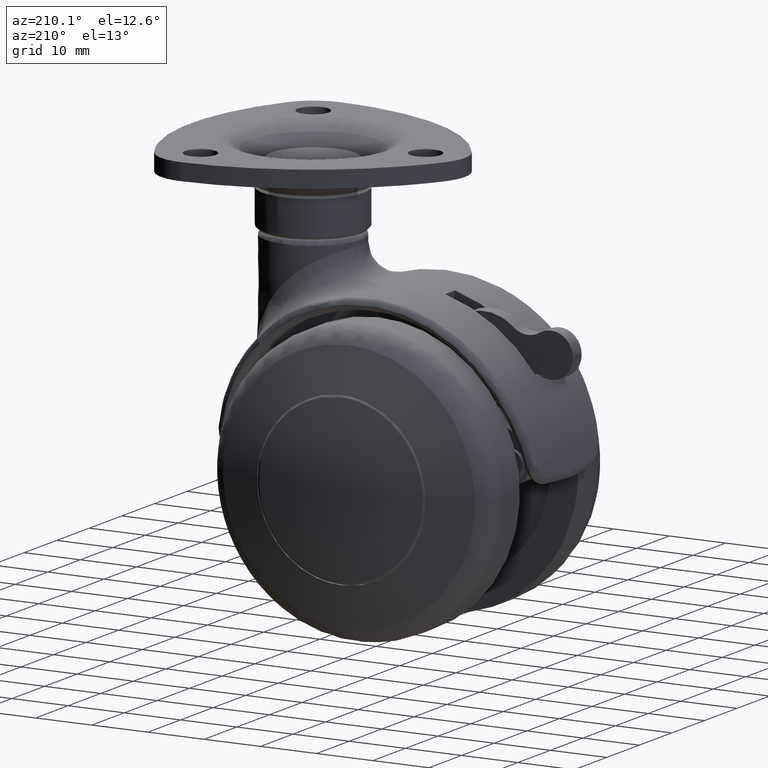
[diagram: clean part render]
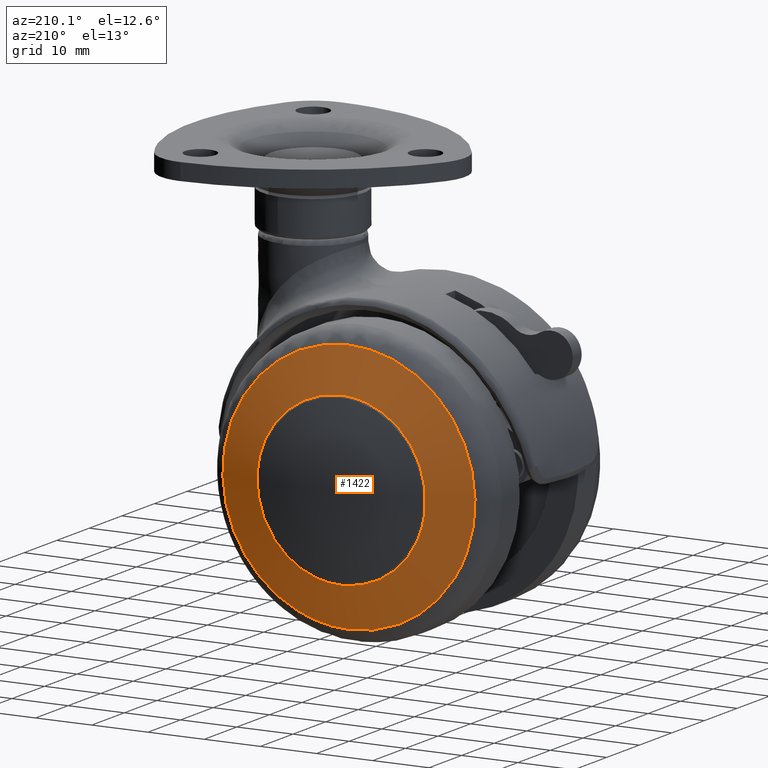
[diagram: same view with one face highlighted and labeled with its STEP entity id]
A machine part, auxiliary view. The second image highlights one B-rep face of the part: STEP entity #1422.
In plain terms, the highlighted face is a freeform B-spline surface patch.
Its self-contained STEP definition (entity closure, byte-faithful):
#688=CARTESIAN_POINT('',(14.895144617698980,-20.670427847322259,-1.770499030674757));
#689=VERTEX_POINT('',#688);
#690=CARTESIAN_POINT('',(0.0,-20.670427847322799,15.0));
#691=VERTEX_POINT('',#690);
#692=CARTESIAN_POINT('',(14.895144617698978,-20.670427847322259,-1.770499030674757));
#693=CARTESIAN_POINT('',(14.999999999999995,-20.670427847322795,-0.888354473602537));
#694=CARTESIAN_POINT('',(15.0,-20.670427847322799,-1.776357E-015));
#695=CARTESIAN_POINT('',(14.999999999999996,-20.670427847322802,14.999999999999996));
#696=CARTESIAN_POINT('',(0.0,-20.670427847322799,15.0));
#704=(BOUNDED_CURVE()B_SPLINE_CURVE(2,(#692,#693,#694,#695,#696),.UNSPECIFIED.,.F.,.U.)B_SPLINE_CURVE_WITH_KNOTS((3,2,3),(0.229562637912729,0.250000000000000,0.500000000000000),.UNSPECIFIED.)CURVE()GEOMETRIC_REPRESENTATION_ITEM()RATIONAL_B_SPLINE_CURVE((0.956027076413153,0.976056140936813,1.0,0.707106781186547,1.0))REPRESENTATION_ITEM(''));
#705=EDGE_CURVE('',#689,#691,#704,.T.);
#707=CARTESIAN_POINT('',(-14.972023451402860,-20.670427847322390,0.915703975124542));
#708=VERTEX_POINT('',#707);
#709=CARTESIAN_POINT('',(0.0,-20.670427847322799,15.0));
#710=CARTESIAN_POINT('',(-14.110613776325915,-20.670427847322806,15.000000000000005));
#711=CARTESIAN_POINT('',(-14.972023451402855,-20.670427847322394,0.915703975124542));
#719=(BOUNDED_CURVE()B_SPLINE_CURVE(2,(#709,#710,#711),.UNSPECIFIED.,.F.,.U.)B_SPLINE_CURVE_WITH_KNOTS((3,3),(0.500000000000000,0.739333240191520),.UNSPECIFIED.)CURVE()GEOMETRIC_REPRESENTATION_ITEM()RATIONAL_B_SPLINE_CURVE((1.0,0.719603667645010,0.976072637372724))REPRESENTATION_ITEM(''));
#720=EDGE_CURVE('',#691,#708,#719,.T.);
#787=CARTESIAN_POINT('',(0.0,-20.670427847322799,-15.0));
#788=VERTEX_POINT('',#787);
#789=CARTESIAN_POINT('',(0.0,-20.670427847322799,-15.0));
#790=CARTESIAN_POINT('',(13.322630940016202,-20.670427847322792,-15.000000000000004));
#791=CARTESIAN_POINT('',(14.895144617698978,-20.670427847322259,-1.770499030674757));
#799=(BOUNDED_CURVE()B_SPLINE_CURVE(2,(#789,#790,#791),.UNSPECIFIED.,.F.,.U.)B_SPLINE_CURVE_WITH_KNOTS((3,3),(0.0,0.229562637912729),.UNSPECIFIED.)CURVE()GEOMETRIC_REPRESENTATION_ITEM()RATIONAL_B_SPLINE_CURVE((1.0,0.731050640249735,0.956027076413153))REPRESENTATION_ITEM(''));
#800=EDGE_CURVE('',#788,#689,#799,.T.);
#834=CARTESIAN_POINT('',(-14.972023451402855,-20.670427847322394,0.915703975124542));
#835=CARTESIAN_POINT('',(-14.999999999999996,-20.670427847322795,0.458279356719046));
#836=CARTESIAN_POINT('',(-15.0,-20.670427847322799,-1.776357E-015));
#837=CARTESIAN_POINT('',(-14.999999999999996,-20.670427847322802,-15.000000000000012));
#838=CARTESIAN_POINT('',(0.0,-20.670427847322799,-15.0));
#846=(BOUNDED_CURVE()B_SPLINE_CURVE(2,(#834,#835,#836,#837,#838),.UNSPECIFIED.,.F.,.U.)B_SPLINE_CURVE_WITH_KNOTS((3,2,3),(0.739333240191520,0.750000000000000,1.0),.UNSPECIFIED.)CURVE()GEOMETRIC_REPRESENTATION_ITEM()RATIONAL_B_SPLINE_CURVE((0.976072637372724,0.987503113541537,1.0,0.707106781186547,1.0))REPRESENTATION_ITEM(''));
#847=EDGE_CURVE('',#708,#788,#846,.T.);
#1070=CARTESIAN_POINT('',(-9.183185828330496,-18.326483563234870,-20.473003505518239));
#1071=VERTEX_POINT('',#1070);
#1085=CARTESIAN_POINT('',(0.0,-18.326483564039400,22.438243567644012));
#1086=VERTEX_POINT('',#1085);
#1087=CARTESIAN_POINT('',(0.0,-18.326483564039400,22.438243567644012));
#1088=CARTESIAN_POINT('',(-22.438243567644012,-18.326483564039407,22.438243567644012));
#1089=CARTESIAN_POINT('',(-22.438243567644001,-18.326483564039400,4.219726E-015));
#1090=CARTESIAN_POINT('',(-22.438243567644008,-18.326483564039396,-14.527434336777457));
#1091=CARTESIAN_POINT('',(-9.183185828330496,-18.326483563234877,-20.473003505518239));
#1099=(BOUNDED_CURVE()B_SPLINE_CURVE(2,(#1087,#1088,#1089,#1090,#1091),.UNSPECIFIED.,.F.,.U.)B_SPLINE_CURVE_WITH_KNOTS((3,2,3),(0.0,0.250000000000000,0.430498914561543),.UNSPECIFIED.)CURVE()GEOMETRIC_REPRESENTATION_ITEM()RATIONAL_B_SPLINE_CURVE((1.0,0.707106781186547,1.0,0.788532367686941,0.882422160153135))REPRESENTATION_ITEM(''));
#1100=EDGE_CURVE('',#1086,#1071,#1099,.T.);
#1102=CARTESIAN_POINT('',(20.964700384866020,-18.326483563309349,-7.997256545762257));
#1103=VERTEX_POINT('',#1102);
#1104=CARTESIAN_POINT('',(20.964700384866017,-18.326483563309342,-7.997256545762257));
#1105=CARTESIAN_POINT('',(22.438243567644005,-18.326483564039403,-4.134382921999007));
#1106=CARTESIAN_POINT('',(22.438243567644001,-18.326483564039400,4.219726E-015));
#1107=CARTESIAN_POINT('',(22.438243567644012,-18.326483564039407,22.438243567644012));
#1108=CARTESIAN_POINT('',(0.0,-18.326483564039400,22.438243567644012));
#1116=(BOUNDED_CURVE()B_SPLINE_CURVE(2,(#1104,#1105,#1106,#1107,#1108),.UNSPECIFIED.,.F.,.U.)B_SPLINE_CURVE_WITH_KNOTS((3,2,3),(0.689474988084195,0.750000000000000,1.0),.UNSPECIFIED.)CURVE()GEOMETRIC_REPRESENTATION_ITEM()RATIONAL_B_SPLINE_CURVE((0.892515443903778,0.929090537765029,1.0,0.707106781186547,1.0))REPRESENTATION_ITEM(''));
#1117=EDGE_CURVE('',#1103,#1086,#1116,.T.);
#1162=CARTESIAN_POINT('',(0.0,-18.326483564039400,-22.438243567644001));
#1163=VERTEX_POINT('',#1162);
#1164=CARTESIAN_POINT('',(0.0,-18.326483564039400,-22.438243567644001));
#1165=CARTESIAN_POINT('',(15.455998809725243,-18.326483564039400,-22.438243567644001));
#1166=CARTESIAN_POINT('',(20.964700384866020,-18.326483563309345,-7.997256545762257));
#1174=(BOUNDED_CURVE()B_SPLINE_CURVE(2,(#1164,#1165,#1166),.UNSPECIFIED.,.F.,.U.)B_SPLINE_CURVE_WITH_KNOTS((3,3),(0.500000000000000,0.689474988084195),.UNSPECIFIED.)CURVE()GEOMETRIC_REPRESENTATION_ITEM()RATIONAL_B_SPLINE_CURVE((1.0,0.778016243421518,0.892515443903778))REPRESENTATION_ITEM(''));
#1175=EDGE_CURVE('',#1163,#1103,#1174,.T.);
#1177=CARTESIAN_POINT('',(-9.183185828330496,-18.326483563234866,-20.473003505518246));
#1178=CARTESIAN_POINT('',(-4.801877698504729,-18.326483564039400,-22.438243567643994));
#1179=CARTESIAN_POINT('',(0.0,-18.326483564039400,-22.438243567644001));
#1187=(BOUNDED_CURVE()B_SPLINE_CURVE(2,(#1177,#1178,#1179),.UNSPECIFIED.,.F.,.U.)B_SPLINE_CURVE_WITH_KNOTS((3,3),(0.430498914561543,0.500000000000000),.UNSPECIFIED.)CURVE()GEOMETRIC_REPRESENTATION_ITEM()RATIONAL_B_SPLINE_CURVE((0.882422160153135,0.918574413499606,1.0))REPRESENTATION_ITEM(''));
#1188=EDGE_CURVE('',#1071,#1163,#1187,.T.);
#1386=CARTESIAN_POINT('',(-23.552111817627480,-12.863343672754569,-23.562166941650236));
#1387=CARTESIAN_POINT('',(-12.248723004718336,-17.486134673232417,-24.507904725825785));
#1388=CARTESIAN_POINT('',(12.250718103222907,-17.486134673232428,-24.507904725825785));
#1389=CARTESIAN_POINT('',(23.555651895531323,-12.861895745517275,-23.561870722440474));
#1390=CARTESIAN_POINT('',(-24.498285800943819,-17.490241348580856,-12.254372437932942));
#1391=CARTESIAN_POINT('',(-12.761376326708220,-22.499999999999790,-12.766824552440980));
#1392=CARTESIAN_POINT('',(12.763454927295051,-22.499999999999790,-12.766824552440980));
#1393=CARTESIAN_POINT('',(24.501955721802741,-17.488674748288908,-12.254212189168856));
#1394=CARTESIAN_POINT('',(-24.498285800943819,-17.490241348580856,12.254371852237053));
#1395=CARTESIAN_POINT('',(-12.761376326708220,-22.499999999999790,12.766823942252520));
#1396=CARTESIAN_POINT('',(12.763454927295051,-22.499999999999790,12.766823942252520));
#1397=CARTESIAN_POINT('',(24.501955721802741,-17.488674748288908,12.254211603480627));
#1398=CARTESIAN_POINT('',(-23.552111904578812,-12.863344097956412,23.562165902488459));
#1399=CARTESIAN_POINT('',(-12.248723051754101,-17.486135133252777,24.507903648585831));
#1400=CARTESIAN_POINT('',(12.250718150266323,-17.486135133252777,24.507903648585831));
#1401=CARTESIAN_POINT('',(23.555651982494627,-12.861896170708423,23.561869683290663));
#1409=(BOUNDED_SURFACE()B_SPLINE_SURFACE(2,2,((#1386,#1390,#1394,#1398),(#1387,#1391,#1395,#1399),(#1388,#1392,#1396,#1400),(#1389,#1393,#1397,#1401)),.UNSPECIFIED.,.F.,.F.,.U.)B_SPLINE_SURFACE_WITH_KNOTS((3,1,3),(3,1,3),(10.686488573312760,35.153186906199267,59.623870427846910),(10.676042984056471,35.153186906199252,59.630329658460617),.UNSPECIFIED.)GEOMETRIC_REPRESENTATION_ITEM()RATIONAL_B_SPLINE_SURFACE(((1.083671513240439,1.041817899456178,1.041817899456178,1.083671509239665),(1.041853613784261,1.0,1.0,1.041853609783487),(1.041853613784261,1.0,1.0,1.041853609783487),(1.083685137129776,1.041831523345516,1.041831523345516,1.083685133129002)))REPRESENTATION_ITEM('')SURFACE());
#1410=ORIENTED_EDGE('',*,*,#1100,.T.);
#1411=ORIENTED_EDGE('',*,*,#1188,.T.);
#1412=ORIENTED_EDGE('',*,*,#1175,.T.);
#1413=ORIENTED_EDGE('',*,*,#1117,.T.);
#1414=EDGE_LOOP('',(#1410,#1411,#1412,#1413));
#1415=FACE_OUTER_BOUND('',#1414,.T.);
#1416=ORIENTED_EDGE('',*,*,#720,.F.);
#1417=ORIENTED_EDGE('',*,*,#705,.F.);
#1418=ORIENTED_EDGE('',*,*,#800,.F.);
#1419=ORIENTED_EDGE('',*,*,#847,.F.);
#1420=EDGE_LOOP('',(#1416,#1417,#1418,#1419));
#1421=FACE_BOUND('',#1420,.T.);
#1422=ADVANCED_FACE('',(#1415,#1421),#1409,.T.);